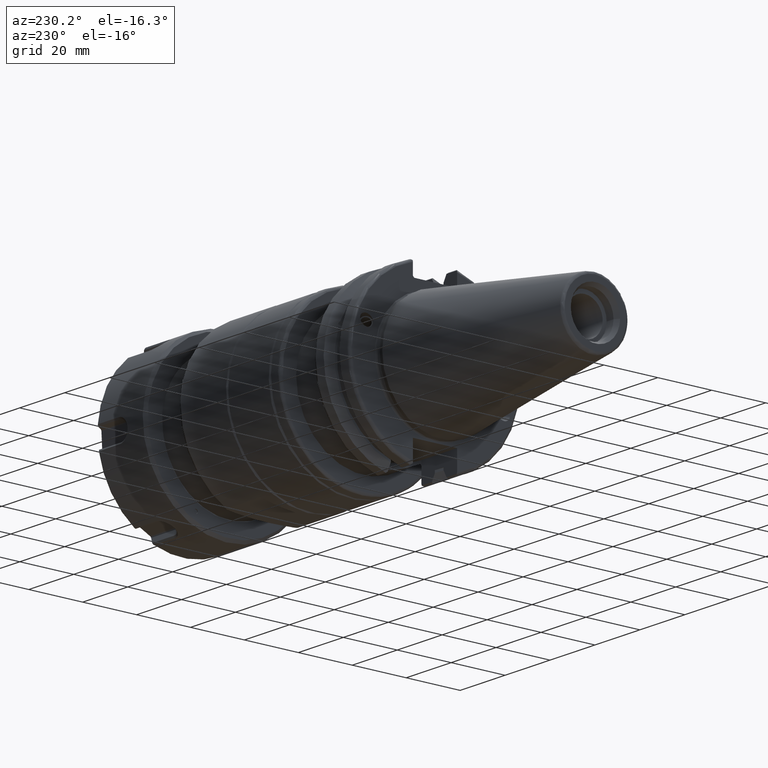
[diagram: clean part render]
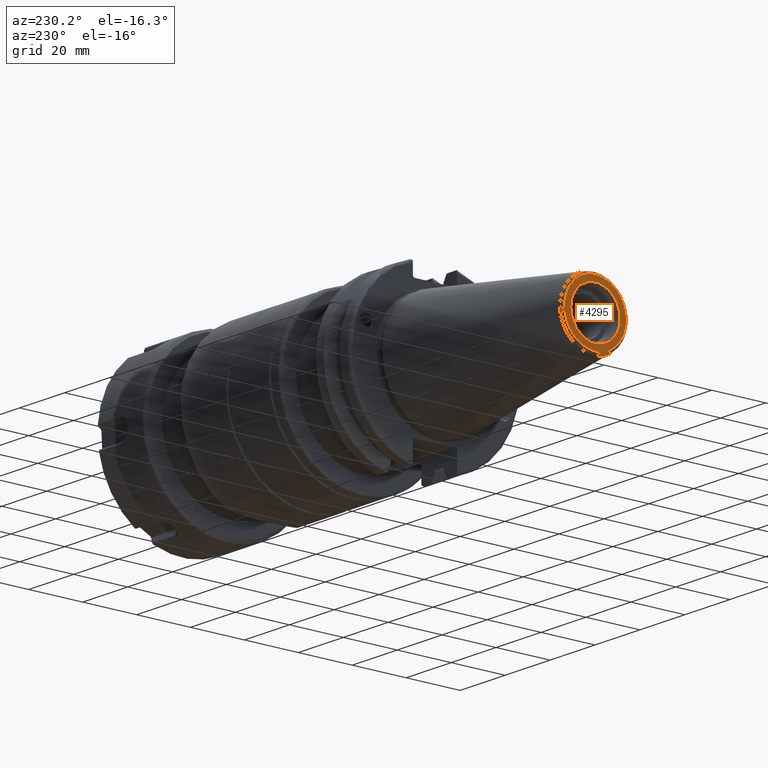
[diagram: same view with one face highlighted and labeled with its STEP entity id]
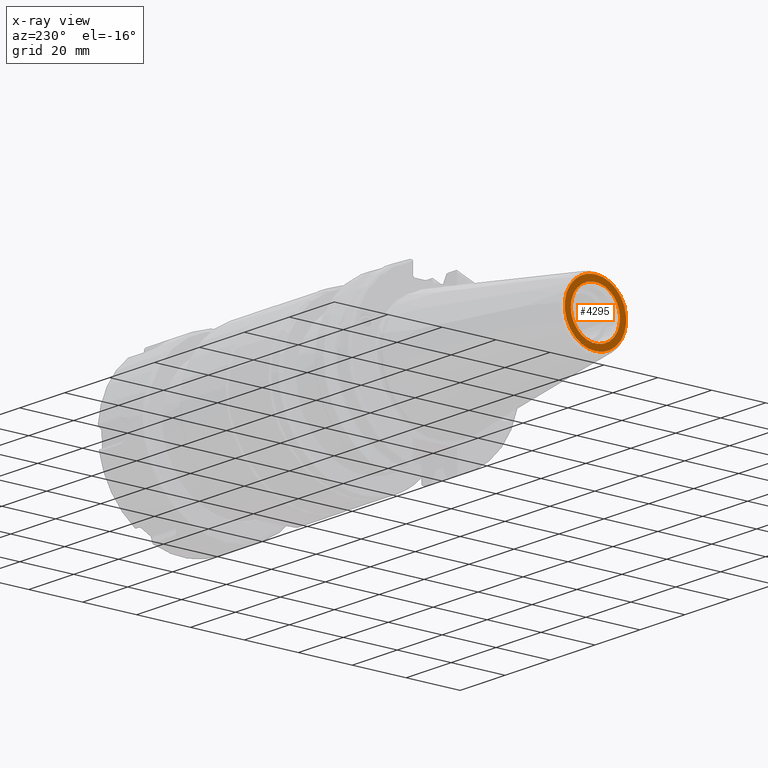
[diagram: x-ray of the same camera — body ghosted, the highlighted face saturated]
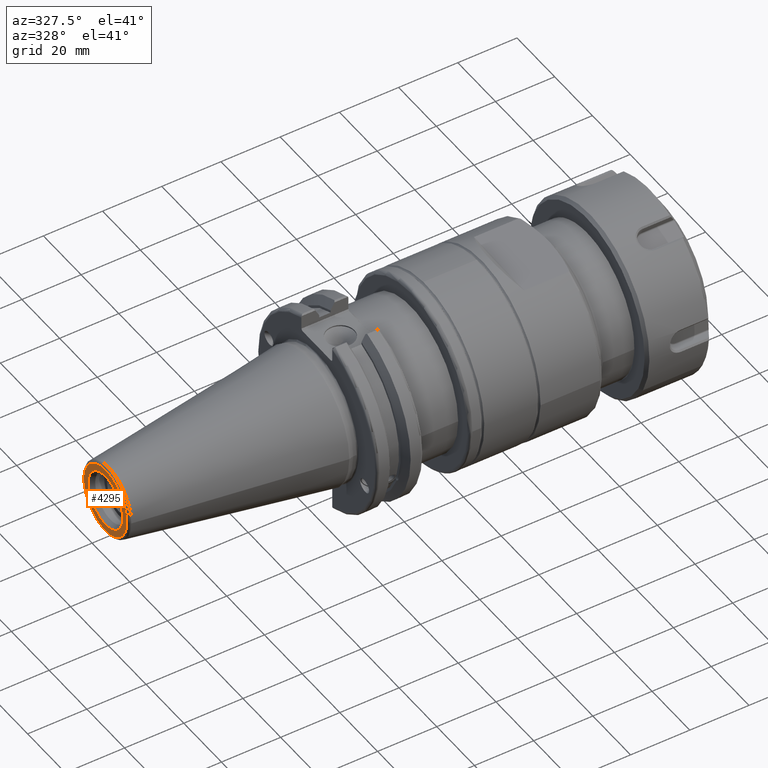
[diagram: same view with one face highlighted and labeled with its STEP entity id]
A machine part, auxiliary view. The second image highlights one B-rep face of the part: STEP entity #4295.
The next image is the same camera in x-ray: the body ghosted, the highlighted face saturated — about 0% of this face is hidden behind the body in this view.
A second angle (auxiliary view) of the same face is appended — the face is thin or edge-on in the first view.
In plain terms, the highlighted planar face has unit normal (-1, 0, 0).
Its self-contained STEP definition (entity closure, byte-faithful):
#256=FACE_BOUND('',#774,.T.);
#333=PLANE('',#4789);
#488=FACE_OUTER_BOUND('',#773,.T.);
#773=EDGE_LOOP('',(#3289));
#774=EDGE_LOOP('',(#3290));
#1061=CIRCLE('',#4788,11.4071305970304);
#1062=CIRCLE('',#4790,9.15);
#1983=VERTEX_POINT('',#7352);
#1984=VERTEX_POINT('',#7356);
#2471=EDGE_CURVE('',#1983,#1983,#1061,.T.);
#2472=EDGE_CURVE('',#1984,#1984,#1062,.T.);
#3289=ORIENTED_EDGE('',*,*,#2471,.F.);
#3290=ORIENTED_EDGE('',*,*,#2472,.T.);
#4295=ADVANCED_FACE('',(#488,#256),#333,.T.);
#4788=AXIS2_PLACEMENT_3D('',#7354,#5596,#5597);
#4789=AXIS2_PLACEMENT_3D('',#7355,#5598,#5599);
#4790=AXIS2_PLACEMENT_3D('',#7357,#5600,#5601);
#5596=DIRECTION('center_axis',(1.,0.,0.));
#5597=DIRECTION('ref_axis',(0.,-1.,1.83697019872103E-16));
#5598=DIRECTION('center_axis',(-1.,0.,0.));
#5599=DIRECTION('ref_axis',(0.,0.,1.));
#5600=DIRECTION('center_axis',(1.,0.,0.));
#5601=DIRECTION('ref_axis',(0.,0.,-1.));
#7352=CARTESIAN_POINT('',(-68.25,-1.39697059731091E-15,11.4071305970304));
#7354=CARTESIAN_POINT('Origin',(-68.25,0.,0.));
#7355=CARTESIAN_POINT('Origin',(-68.25,12.271875,0.));
#7356=CARTESIAN_POINT('',(-68.25,-9.15,-1.12055182121983E-15));
#7357=CARTESIAN_POINT('Origin',(-68.25,0.,0.));